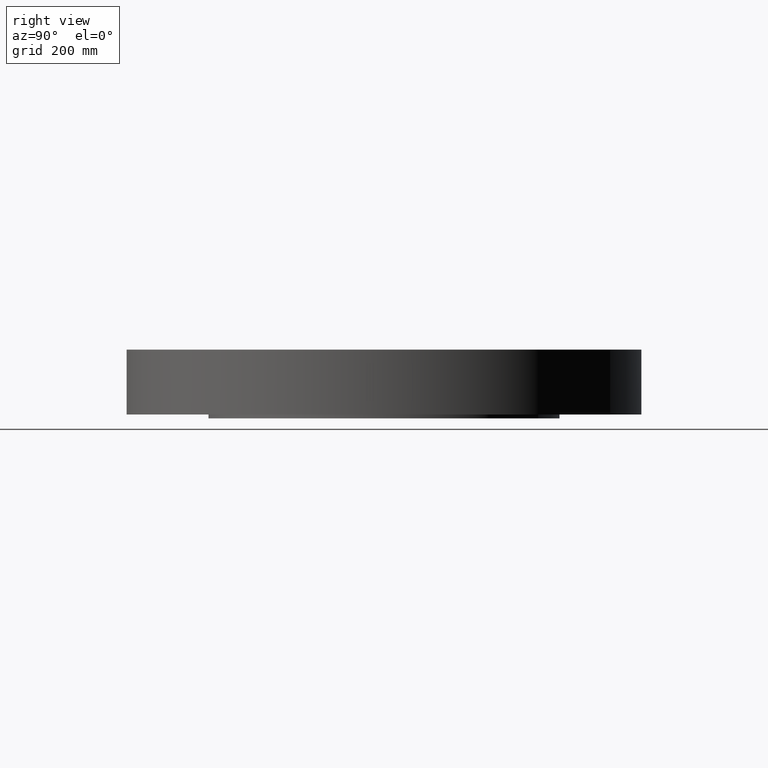
[diagram: clean part render]
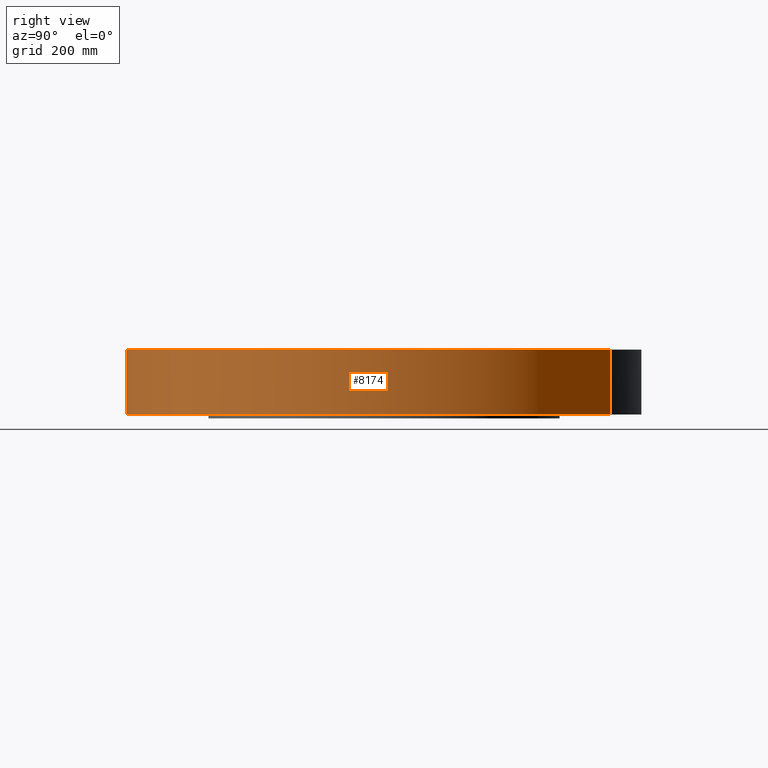
[diagram: same view with one face highlighted and labeled with its STEP entity id]
A machine part, right view. The second image highlights one B-rep face of the part: STEP entity #8174.
In plain terms, the highlighted cylindrical surface (partial cylindrical patch) has radius 428.625 mm, axis along (0, 0, -1).
Its self-contained STEP definition (entity closure, byte-faithful):
#7187=AXIS2_PLACEMENT_3D('Circle Axis2P3D',#7185,#7186,$) ;
#8135=AXIS2_PLACEMENT_3D('Cylinder Axis2P3D',#8132,#8133,#8134) ;
#8165=AXIS2_PLACEMENT_3D('Circle Axis2P3D',#8163,#8164,$) ;
#7180=CARTESIAN_POINT('Vertex',(-8.09030596398,-14.809205732,-4.97939397501E-014)) ;
#7182=CARTESIAN_POINT('Vertex',(8.09030596398,14.809205732,-4.97939397501E-014)) ;
#7185=CARTESIAN_POINT('Axis2P3D Location',(0.,0.,0.)) ;
#8132=CARTESIAN_POINT('Axis2P3D Location',(0.,0.,2.00000000001)) ;
#8137=CARTESIAN_POINT('Line Origine',(-8.09030596398,-14.809205732,2.12500000001)) ;
#8141=CARTESIAN_POINT('Vertex',(-8.09030596398,-14.809205732,4.25000000002)) ;
#8148=CARTESIAN_POINT('Vertex',(8.09030596398,14.809205732,4.25000000002)) ;
#8151=CARTESIAN_POINT('Line Origine',(8.09030596398,14.809205732,2.12500000001)) ;
#8163=CARTESIAN_POINT('Axis2P3D Location',(0.,0.,4.25000000002)) ;
#7186=DIRECTION('Axis2P3D Direction',(0.,0.,-0.0393700787402)) ;
#8133=DIRECTION('Axis2P3D Direction',(0.,0.,-0.0393700787402)) ;
#8134=DIRECTION('Axis2P3D XDirection',(0.0188750212049,0.0345504945626,0.)) ;
#8138=DIRECTION('Vector Direction',(0.,0.,-0.0393700787402)) ;
#8152=DIRECTION('Vector Direction',(0.,0.,-0.0393700787402)) ;
#8164=DIRECTION('Axis2P3D Direction',(0.,0.,-0.0393700787402)) ;
#8139=VECTOR('Line Direction',#8138,0.0393700787402) ;
#8153=VECTOR('Line Direction',#8152,0.0393700787402) ;
#8169=ORIENTED_EDGE('',*,*,#7189,.F.) ;
#8170=ORIENTED_EDGE('',*,*,#8155,.T.) ;
#8171=ORIENTED_EDGE('',*,*,#8167,.T.) ;
#8172=ORIENTED_EDGE('',*,*,#8143,.F.) ;
#8174=ADVANCED_FACE('PartBody',(#8173),#8136,.T.) ;
#7188=CIRCLE('generated circle',#7187,16.8750000001) ;
#8166=CIRCLE('generated circle',#8165,16.8750000001) ;
#8136=CYLINDRICAL_SURFACE('generated cylinder',#8135,16.8750000001) ;
#7189=EDGE_CURVE('',#7183,#7181,#7188,.T.) ;
#8143=EDGE_CURVE('',#7181,#8142,#8140,.F.) ;
#8155=EDGE_CURVE('',#7183,#8149,#8154,.F.) ;
#8167=EDGE_CURVE('',#8149,#8142,#8166,.T.) ;
#8168=EDGE_LOOP('',(#8169,#8170,#8171,#8172)) ;
#8173=FACE_OUTER_BOUND('',#8168,.T.) ;
#8140=LINE('Line',#8137,#8139) ;
#8154=LINE('Line',#8151,#8153) ;
#7181=VERTEX_POINT('',#7180) ;
#7183=VERTEX_POINT('',#7182) ;
#8142=VERTEX_POINT('',#8141) ;
#8149=VERTEX_POINT('',#8148) ;